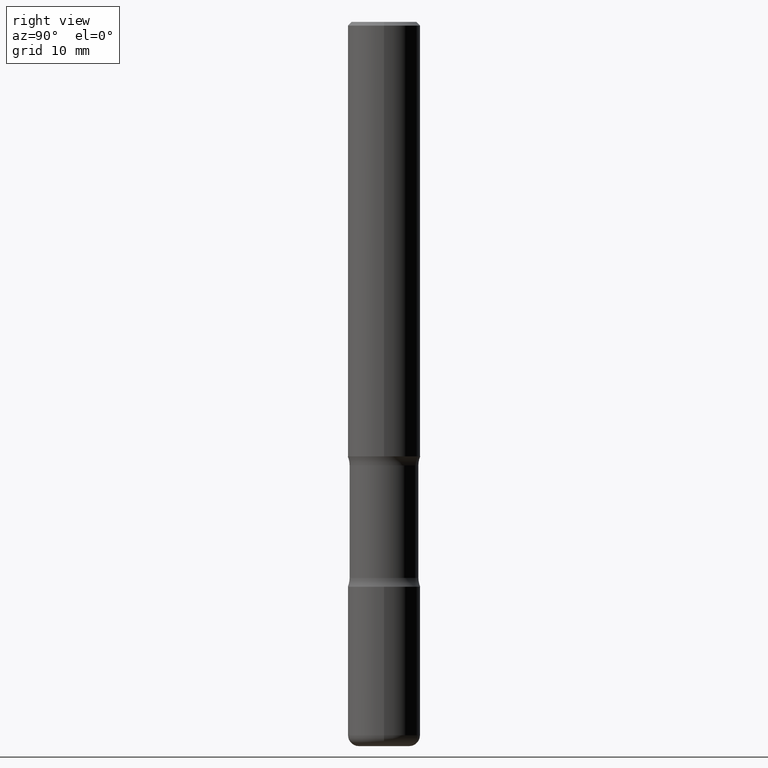
[diagram: clean part render]
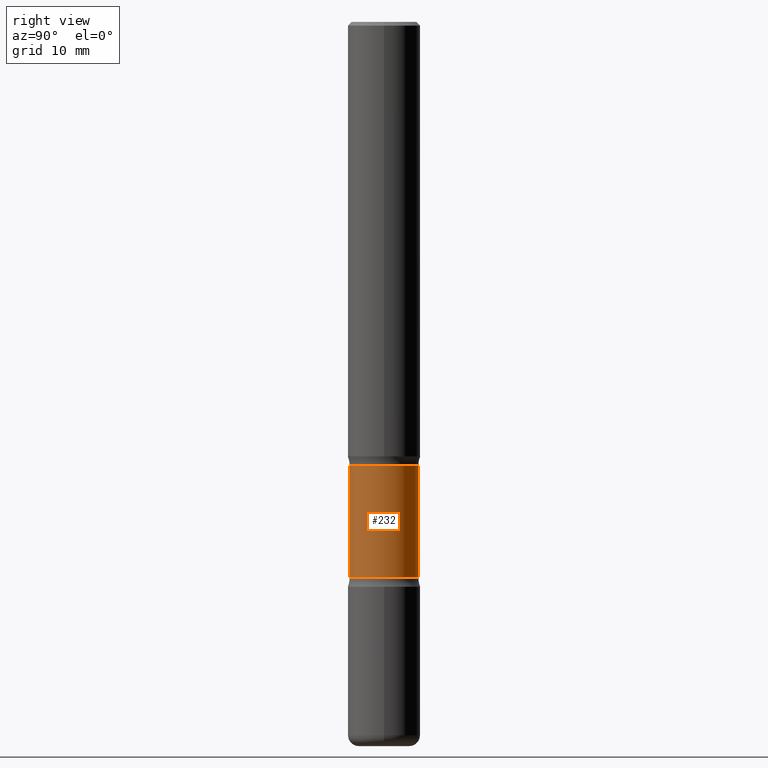
[diagram: same view with one face highlighted and labeled with its STEP entity id]
A machine part, right view. The second image highlights one B-rep face of the part: STEP entity #232.
In plain terms, the highlighted cylindrical surface (edge-blend (fillet) strip) has radius 4.7498 mm, axis along (0, -0, -1).
Its self-contained STEP definition (entity closure, byte-faithful):
#1 = AXIS2_PLACEMENT_3D ( 'NONE', #329, #500, #114 ) ;
#11 = CIRCLE ( 'NONE', #447, 0.1870000000000000551 ) ;
#26 = EDGE_CURVE ( 'NONE', #185, #134, #362, .T. ) ;
#46 = VECTOR ( 'NONE', #379, 39.37007874015748143 ) ;
#107 = LINE ( 'NONE', #200, #46 ) ;
#114 = DIRECTION ( 'NONE',  ( 6.982962677686266711E-15, 1.000000000000000000, -2.921762560068729411E-15 ) ) ;
#121 = CARTESIAN_POINT ( 'NONE',  ( 1.305814020727390771E-15, 0.1869999999999916174, -2.410836174808470567 ) ) ;
#134 = VERTEX_POINT ( 'NONE', #449 ) ;
#141 = CARTESIAN_POINT ( 'NONE',  ( -1.282913125583179628E-15, -0.1870000000000137108, -3.936999999999999389 ) ) ;
#157 = DIRECTION ( 'NONE',  ( 6.982962677686266711E-15, 1.000000000000000000, -2.921762560068729806E-15 ) ) ;
#161 = EDGE_CURVE ( 'NONE', #469, #185, #162, .T. ) ;
#162 = CIRCLE ( 'NONE', #538, 0.1870000000000001106 ) ;
#166 = CARTESIAN_POINT ( 'NONE',  ( 7.386223780689915972E-29, -1.055880548925453445E-14, -3.022263825191530362 ) ) ;
#172 = ORIENTED_EDGE ( 'NONE', *, *, #256, .F. ) ;
#185 = VERTEX_POINT ( 'NONE', #454 ) ;
#190 = VERTEX_POINT ( 'NONE', #242 ) ;
#200 = CARTESIAN_POINT ( 'NONE',  ( 1.305814020727429425E-15, 0.1869999999999864548, -3.937000000000000721 ) ) ;
#204 = DIRECTION ( 'NONE',  ( 6.982962677686266711E-15, 1.000000000000000000, -2.921762560068729017E-15 ) ) ;
#220 = DIRECTION ( 'NONE',  ( 2.540626945080028130E-29, -3.355209467880745729E-15, -1.000000000000000000 ) ) ;
#231 = ORIENTED_EDGE ( 'NONE', *, *, #26, .T. ) ;
#232 = ADVANCED_FACE ( 'NONE', ( #371 ), #337, .T. ) ;
#242 = CARTESIAN_POINT ( 'NONE',  ( 1.305814020727405957E-15, 0.1869999999999895079, -3.022263825191530806 ) ) ;
#256 = EDGE_CURVE ( 'NONE', #469, #190, #107, .T. ) ;
#261 = EDGE_LOOP ( 'NONE', ( #297, #231, #372, #172 ) ) ;
#278 = CARTESIAN_POINT ( 'NONE',  ( 5.832814217159742143E-29, -8.507337647765213396E-15, -2.410836174808470123 ) ) ;
#297 = ORIENTED_EDGE ( 'NONE', *, *, #161, .T. ) ;
#309 = VECTOR ( 'NONE', #220, 39.37007874015748143 ) ;
#329 = CARTESIAN_POINT ( 'NONE',  ( 9.710227154047748282E-29, -1.362793696358492956E-14, -3.937000000000000277 ) ) ;
#337 = CYLINDRICAL_SURFACE ( 'NONE', #1, 0.1870000000000000828 ) ;
#362 = LINE ( 'NONE', #141, #309 ) ;
#371 = FACE_OUTER_BOUND ( 'NONE', #261, .T. ) ;
#372 = ORIENTED_EDGE ( 'NONE', *, *, #435, .F. ) ;
#379 = DIRECTION ( 'NONE',  ( 2.540626945080028130E-29, -3.355209467880745729E-15, -1.000000000000000000 ) ) ;
#433 = DIRECTION ( 'NONE',  ( 2.540626945080028130E-29, -3.355209467880746123E-15, -1.000000000000000000 ) ) ;
#435 = EDGE_CURVE ( 'NONE', #190, #134, #11, .T. ) ;
#446 = DIRECTION ( 'NONE',  ( 2.540626945080028130E-29, -3.355209467880746123E-15, -1.000000000000000000 ) ) ;
#447 = AXIS2_PLACEMENT_3D ( 'NONE', #166, #433, #157 ) ;
#449 = CARTESIAN_POINT ( 'NONE',  ( -1.316701078222226890E-15, -0.1870000000000106022, -3.022263825191529918 ) ) ;
#454 = CARTESIAN_POINT ( 'NONE',  ( -1.316701078222244837E-15, -0.1870000000000086315, -2.410836174808469679 ) ) ;
#469 = VERTEX_POINT ( 'NONE', #121 ) ;
#500 = DIRECTION ( 'NONE',  ( 2.540626945080028130E-29, -3.355209467880746123E-15, -1.000000000000000000 ) ) ;
#538 = AXIS2_PLACEMENT_3D ( 'NONE', #278, #446, #204 ) ;